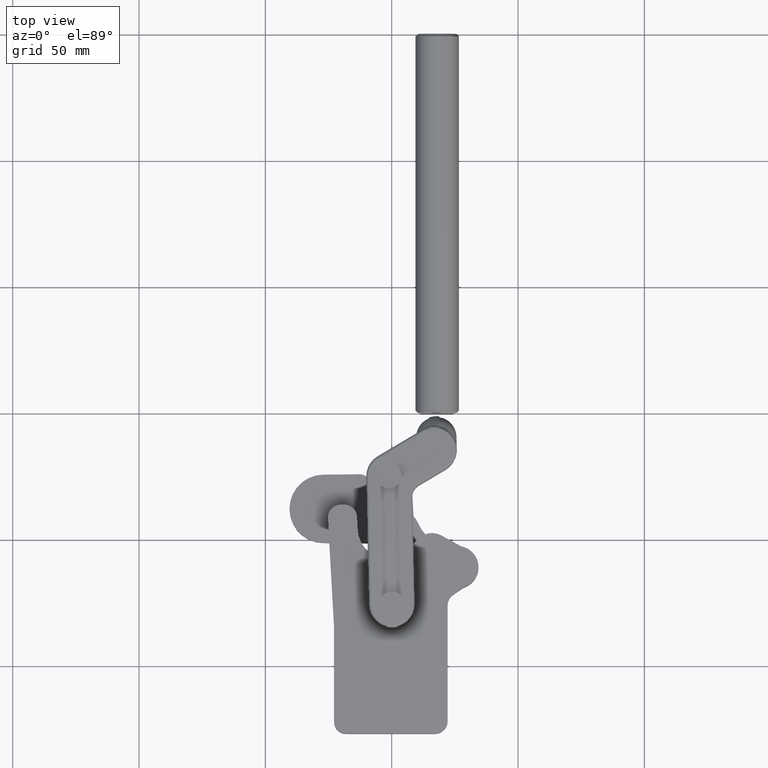
[diagram: clean part render]
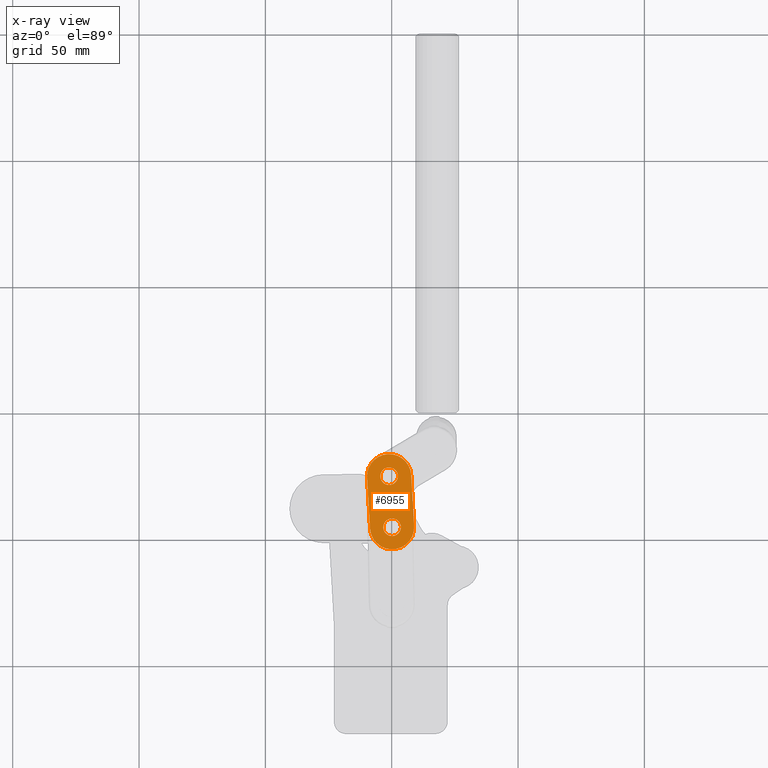
[diagram: x-ray — body ghosted, one internal face saturated and labeled with its STEP entity id]
A machine part, top view, then the same camera in x-ray: the body is ghosted and one INTERNAL B-rep face — a face not visible from any outside direction — is saturated and labeled: STEP entity #6955.
In plain terms, the highlighted planar face has unit normal (-0, 0, -1).
Its self-contained STEP definition (entity closure, byte-faithful):
#116 = EDGE_CURVE ( 'NONE', #8564, #2103, #2956, .T. ) ;
#261 = DIRECTION ( 'NONE',  ( 0.9983263949096644600, 0.05783086742106353200, 0.0000000000000000000 ) ) ;
#312 = CARTESIAN_POINT ( 'NONE',  ( -8.594897089228505000, 54.05741990829141500, 8.199999999999994000 ) ) ;
#315 = VERTEX_POINT ( 'NONE', #519 ) ;
#509 = CARTESIAN_POINT ( 'NONE',  ( -9.766550463179239500, 74.28351266916122600, 8.199999999999994000 ) ) ;
#519 = CARTESIAN_POINT ( 'NONE',  ( -9.766550463179239500, 74.28351266916122600, 8.199999999999994000 ) ) ;
#627 = VECTOR ( 'NONE', #9151, 1000.000000000000100 ) ;
#1289 = EDGE_LOOP ( 'NONE', ( #3899, #7959 ) ) ;
#1327 = EDGE_CURVE ( 'NONE', #4436, #315, #7869, .T. ) ;
#1357 = AXIS2_PLACEMENT_3D ( 'NONE', #8840, #8297, #5921 ) ;
#1380 = CARTESIAN_POINT ( 'NONE',  ( 3.623990590586618800, 54.46228800660738800, 8.199999999999994000 ) ) ;
#1441 = DIRECTION ( 'NONE',  ( -1.441532042240223800E-036, 6.014838294664055200E-037, -1.000000000000000000 ) ) ;
#1550 = FACE_OUTER_BOUND ( 'NONE', #4391, .T. ) ;
#1977 = VERTEX_POINT ( 'NONE', #3541 ) ;
#2093 = CIRCLE ( 'NONE', #7569, 3.484999999999999900 ) ;
#2103 = VERTEX_POINT ( 'NONE', #10751 ) ;
#2383 = CARTESIAN_POINT ( 'NONE',  ( -1.031194507719675600, 74.78953275909552200, 8.199999999999994000 ) ) ;
#2530 = EDGE_CURVE ( 'NONE', #8564, #4436, #9164, .T. ) ;
#2553 = VERTEX_POINT ( 'NONE', #1380 ) ;
#2626 = AXIS2_PLACEMENT_3D ( 'NONE', #3628, #3601, #3589 ) ;
#2720 = FACE_BOUND ( 'NONE', #9690, .T. ) ;
#2956 = LINE ( 'NONE', #10544, #4868 ) ;
#3184 = ORIENTED_EDGE ( 'NONE', *, *, #5423, .F. ) ;
#3448 = CIRCLE ( 'NONE', #10731, 3.484999999999999900 ) ;
#3510 = DIRECTION ( 'NONE',  ( -2.775557561562890700E-017, 0.0000000000000000000, -1.000000000000000000 ) ) ;
#3541 = CARTESIAN_POINT ( 'NONE',  ( 2.453805492280319600, 74.78953275909556500, 8.199999999999992200 ) ) ;
#3545 = CIRCLE ( 'NONE', #11366, 3.484999999999997700 ) ;
#3589 = DIRECTION ( 'NONE',  ( -1.000000000000000000, 0.0000000000000000000, 0.0000000000000000000 ) ) ;
#3601 = DIRECTION ( 'NONE',  ( 0.0000000000000000000, 0.0000000000000000000, 1.000000000000000000 ) ) ;
#3628 = CARTESIAN_POINT ( 'NONE',  ( -1.031194507719678700, 74.78953275909556500, 8.199999999999992200 ) ) ;
#3899 = ORIENTED_EDGE ( 'NONE', *, *, #5119, .T. ) ;
#4113 = CIRCLE ( 'NONE', #10676, 8.750000000000000000 ) ;
#4133 = DIRECTION ( 'NONE',  ( 0.9983263949096644600, 0.05783086742106353200, 0.0000000000000000000 ) ) ;
#4183 = VERTEX_POINT ( 'NONE', #8036 ) ;
#4391 = EDGE_LOOP ( 'NONE', ( #7714, #5339, #11455, #3184, #9002 ) ) ;
#4436 = VERTEX_POINT ( 'NONE', #312 ) ;
#4743 = PLANE ( 'NONE',  #7877 ) ;
#4868 = VECTOR ( 'NONE', #6619, 1000.000000000000100 ) ;
#5055 = ORIENTED_EDGE ( 'NONE', *, *, #10351, .F. ) ;
#5111 = CARTESIAN_POINT ( 'NONE',  ( 0.1404588662310569900, 54.56343999822577500, 8.199999999999994000 ) ) ;
#5119 = EDGE_CURVE ( 'NONE', #4183, #2553, #3448, .T. ) ;
#5339 = ORIENTED_EDGE ( 'NONE', *, *, #2530, .F. ) ;
#5355 = VERTEX_POINT ( 'NONE', #6538 ) ;
#5423 = EDGE_CURVE ( 'NONE', #6632, #2103, #5487, .T. ) ;
#5487 = CIRCLE ( 'NONE', #8217, 8.750000000000000000 ) ;
#5921 = DIRECTION ( 'NONE',  ( 0.9983263949096644600, 0.05783086742106274800, 0.0000000000000000000 ) ) ;
#6136 = DIRECTION ( 'NONE',  ( -1.441532042240223800E-036, 6.014838294664055200E-037, -1.000000000000000000 ) ) ;
#6464 = DIRECTION ( 'NONE',  ( 0.9983263949096644600, 0.05783086742106283200, -1.404335155278663800E-036 ) ) ;
#6538 = CARTESIAN_POINT ( 'NONE',  ( -4.516194507719677500, 74.78953275909556500, 8.199999999999992200 ) ) ;
#6619 = DIRECTION ( 'NONE',  ( -0.05783086742106290800, 0.9983263949096644600, 6.838422314856643500E-037 ) ) ;
#6632 = VERTEX_POINT ( 'NONE', #9812 ) ;
#6730 = CARTESIAN_POINT ( 'NONE',  ( -12.93237885065481800, 85.70526839282845800, 8.199999999999994000 ) ) ;
#6811 = CARTESIAN_POINT ( 'NONE',  ( -1.031194507719675600, 74.78953275909552200, 8.199999999999994000 ) ) ;
#6908 = ORIENTED_EDGE ( 'NONE', *, *, #10511, .F. ) ;
#6955 = ADVANCED_FACE ( 'NONE', ( #1550, #8724, #2720 ), #4743, .F. ) ;
#7329 = DIRECTION ( 'NONE',  ( -0.9995786870460723300, 0.02902496172693984000, 0.0000000000000000000 ) ) ;
#7569 = AXIS2_PLACEMENT_3D ( 'NONE', #7773, #7750, #7732 ) ;
#7642 = EDGE_CURVE ( 'NONE', #315, #6632, #4113, .T. ) ;
#7714 = ORIENTED_EDGE ( 'NONE', *, *, #1327, .F. ) ;
#7732 = DIRECTION ( 'NONE',  ( -0.9995786870460723300, 0.02902496172693984000, 0.0000000000000000000 ) ) ;
#7750 = DIRECTION ( 'NONE',  ( -2.775557561562890700E-017, 0.0000000000000000000, -1.000000000000000000 ) ) ;
#7773 = CARTESIAN_POINT ( 'NONE',  ( 0.1404588662310569900, 54.56343999822577500, 8.199999999999994000 ) ) ;
#7869 = LINE ( 'NONE', #509, #627 ) ;
#7877 = AXIS2_PLACEMENT_3D ( 'NONE', #6730, #8769, #6464 ) ;
#7959 = ORIENTED_EDGE ( 'NONE', *, *, #8589, .T. ) ;
#8036 = CARTESIAN_POINT ( 'NONE',  ( -3.343072858124505100, 54.66459198984415500, 8.199999999999994000 ) ) ;
#8152 = DIRECTION ( 'NONE',  ( -1.000000000000000000, 0.0000000000000000000, 0.0000000000000000000 ) ) ;
#8168 = DIRECTION ( 'NONE',  ( 0.0000000000000000000, 0.0000000000000000000, 1.000000000000000000 ) ) ;
#8176 = CARTESIAN_POINT ( 'NONE',  ( 8.875814821690623200, 55.06946008816002100, 8.199999999999994000 ) ) ;
#8178 = CIRCLE ( 'NONE', #2626, 3.484999999999997700 ) ;
#8181 = CARTESIAN_POINT ( 'NONE',  ( -1.031194507719678700, 74.78953275909556500, 8.199999999999992200 ) ) ;
#8217 = AXIS2_PLACEMENT_3D ( 'NONE', #6811, #6136, #4133 ) ;
#8297 = DIRECTION ( 'NONE',  ( -1.441532042240223800E-036, 6.014838294664055200E-037, -1.000000000000000000 ) ) ;
#8564 = VERTEX_POINT ( 'NONE', #8176 ) ;
#8589 = EDGE_CURVE ( 'NONE', #2553, #4183, #2093, .T. ) ;
#8724 = FACE_BOUND ( 'NONE', #1289, .T. ) ;
#8769 = DIRECTION ( 'NONE',  ( -1.441532042240223800E-036, 6.014838294664055200E-037, -1.000000000000000000 ) ) ;
#8840 = CARTESIAN_POINT ( 'NONE',  ( 0.1404588662310600800, 54.56343999822571800, 8.199999999999994000 ) ) ;
#9002 = ORIENTED_EDGE ( 'NONE', *, *, #7642, .F. ) ;
#9151 = DIRECTION ( 'NONE',  ( -0.05783086742106291500, 0.9983263949096644600, 6.838422314856643500E-037 ) ) ;
#9164 = CIRCLE ( 'NONE', #1357, 8.750000000000000000 ) ;
#9690 = EDGE_LOOP ( 'NONE', ( #5055, #6908 ) ) ;
#9812 = CARTESIAN_POINT ( 'NONE',  ( -1.537214597653975700, 83.52488871455509000, 8.199999999999994000 ) ) ;
#10351 = EDGE_CURVE ( 'NONE', #1977, #5355, #3545, .T. ) ;
#10511 = EDGE_CURVE ( 'NONE', #5355, #1977, #8178, .T. ) ;
#10544 = CARTESIAN_POINT ( 'NONE',  ( 7.034149047538474700, 86.86188574124969400, 8.199999999999994000 ) ) ;
#10676 = AXIS2_PLACEMENT_3D ( 'NONE', #2383, #1441, #261 ) ;
#10731 = AXIS2_PLACEMENT_3D ( 'NONE', #5111, #3510, #7329 ) ;
#10751 = CARTESIAN_POINT ( 'NONE',  ( 7.704161447739887900, 75.29555284902981800, 8.199999999999994000 ) ) ;
#11366 = AXIS2_PLACEMENT_3D ( 'NONE', #8181, #8168, #8152 ) ;
#11455 = ORIENTED_EDGE ( 'NONE', *, *, #116, .T. ) ;